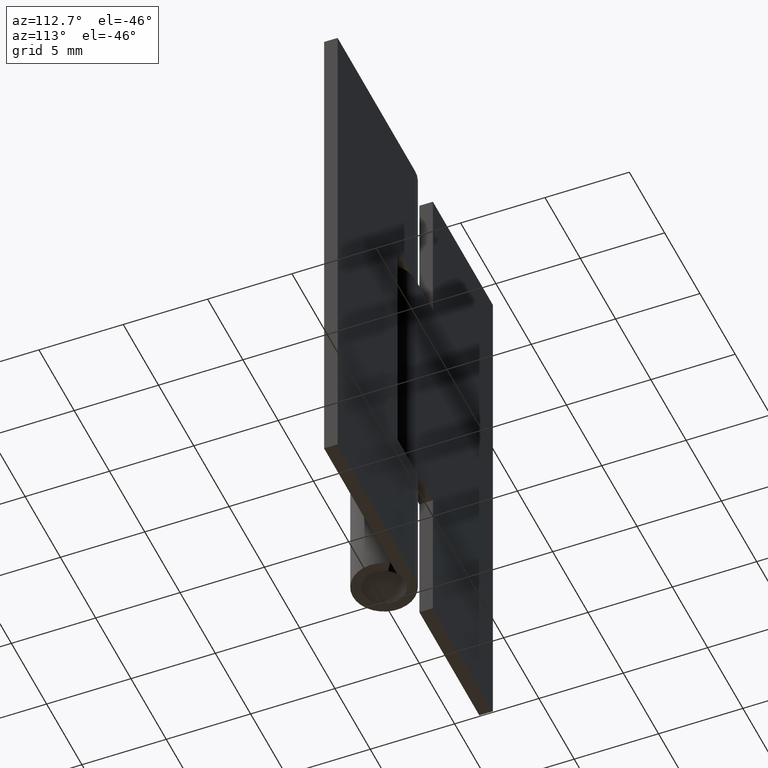
[diagram: clean part render]
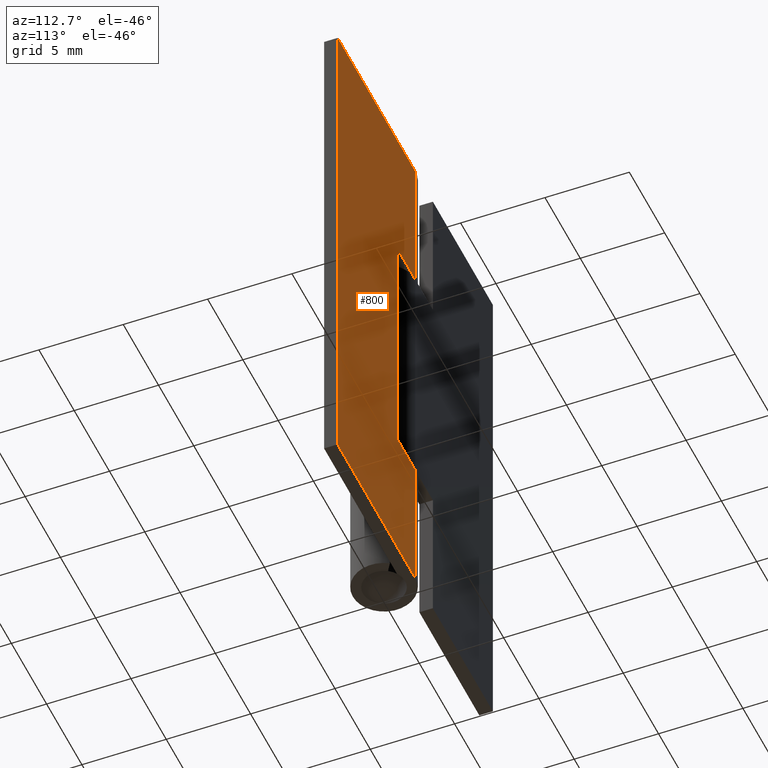
[diagram: same view with one face highlighted and labeled with its STEP entity id]
A machine part, auxiliary view. The second image highlights one B-rep face of the part: STEP entity #800.
In plain terms, the highlighted face is a freeform B-spline surface patch.
Its self-contained STEP definition (entity closure, byte-faithful):
#558=CARTESIAN_POINT('',(0.002720293357385,1.849997999999965,23.500000000000000));
#559=VERTEX_POINT('',#558);
#601=CARTESIAN_POINT('',(0.002720293357385,1.849998000000000,32.0));
#602=VERTEX_POINT('',#601);
#637=CARTESIAN_POINT('',(0.002720293357385,1.849998000000000,32.0));
#638=CARTESIAN_POINT('',(0.002720293357385,1.849997999999965,23.500000000000000));
#639=QUASI_UNIFORM_CURVE('',1,(#637,#638),.UNSPECIFIED.,.F.,.U.);
#640=EDGE_CURVE('',#602,#559,#639,.T.);
#702=CARTESIAN_POINT('',(0.002720293357385,1.849997999999965,8.499999999999870));
#703=VERTEX_POINT('',#702);
#709=CARTESIAN_POINT('',(0.002720293357385,1.849998000000000,0.0));
#710=VERTEX_POINT('',#709);
#711=CARTESIAN_POINT('',(0.002720293357385,1.849997999999965,8.499999999999870));
#712=CARTESIAN_POINT('',(0.002720293357385,1.849998000000000,0.0));
#713=QUASI_UNIFORM_CURVE('',1,(#711,#712),.UNSPECIFIED.,.F.,.U.);
#714=EDGE_CURVE('',#703,#710,#713,.T.);
#753=CARTESIAN_POINT('',(-0.546593806674552,1.849998000000000,33.598399937977788));
#754=CARTESIAN_POINT('',(-0.546593806674552,1.849998000000000,-1.598400796284675));
#755=CARTESIAN_POINT('',(11.549314395001961,1.849998000000000,33.598399937977788));
#756=CARTESIAN_POINT('',(11.549314395001961,1.849998000000000,-1.598400796284675));
#757=B_SPLINE_SURFACE_WITH_KNOTS('',1,1,((#753,#755),(#754,#756)),.UNSPECIFIED.,.F.,.F.,.U.,(2,2),(2,2),(0.0,35.196800734262460),(0.0,12.095908201676520),.UNSPECIFIED.);
#758=CARTESIAN_POINT('',(2.500000000000000,1.849997999999965,8.499999999999870));
#759=VERTEX_POINT('',#758);
#760=CARTESIAN_POINT('',(0.002720293357385,1.849997999999965,8.499999999999870));
#761=CARTESIAN_POINT('',(2.500000000000000,1.849997999999965,8.499999999999870));
#762=QUASI_UNIFORM_CURVE('',1,(#760,#761),.UNSPECIFIED.,.F.,.U.);
#763=EDGE_CURVE('',#703,#759,#762,.T.);
#764=ORIENTED_EDGE('',*,*,#763,.T.);
#765=CARTESIAN_POINT('',(2.500000000000000,1.849997999999965,23.500000000000000));
#766=VERTEX_POINT('',#765);
#767=CARTESIAN_POINT('',(2.500000000000000,1.849997999999965,8.499999999999870));
#768=CARTESIAN_POINT('',(2.500000000000000,1.849997999999965,23.500000000000000));
#769=QUASI_UNIFORM_CURVE('',1,(#767,#768),.UNSPECIFIED.,.F.,.U.);
#770=EDGE_CURVE('',#759,#766,#769,.T.);
#771=ORIENTED_EDGE('',*,*,#770,.T.);
#772=CARTESIAN_POINT('',(2.500000000000000,1.849997999999965,23.500000000000000));
#773=CARTESIAN_POINT('',(0.002720293357385,1.849997999999965,23.500000000000000));
#774=QUASI_UNIFORM_CURVE('',1,(#772,#773),.UNSPECIFIED.,.F.,.U.);
#775=EDGE_CURVE('',#766,#559,#774,.T.);
#776=ORIENTED_EDGE('',*,*,#775,.T.);
#777=ORIENTED_EDGE('',*,*,#640,.F.);
#778=CARTESIAN_POINT('',(11.0,1.849998000000000,32.0));
#779=VERTEX_POINT('',#778);
#780=CARTESIAN_POINT('',(11.0,1.849998000000000,32.0));
#781=CARTESIAN_POINT('',(0.002720293357385,1.849998000000000,32.0));
#782=QUASI_UNIFORM_CURVE('',1,(#780,#781),.UNSPECIFIED.,.F.,.U.);
#783=EDGE_CURVE('',#779,#602,#782,.T.);
#784=ORIENTED_EDGE('',*,*,#783,.F.);
#785=CARTESIAN_POINT('',(11.0,1.849998000000000,0.0));
#786=VERTEX_POINT('',#785);
#787=CARTESIAN_POINT('',(11.0,1.849998000000000,32.0));
#788=CARTESIAN_POINT('',(11.0,1.849998000000000,0.0));
#789=QUASI_UNIFORM_CURVE('',1,(#787,#788),.UNSPECIFIED.,.F.,.U.);
#790=EDGE_CURVE('',#779,#786,#789,.T.);
#791=ORIENTED_EDGE('',*,*,#790,.T.);
#792=CARTESIAN_POINT('',(11.0,1.849998000000000,0.0));
#793=CARTESIAN_POINT('',(0.002720293357385,1.849998000000000,0.0));
#794=QUASI_UNIFORM_CURVE('',1,(#792,#793),.UNSPECIFIED.,.F.,.U.);
#795=EDGE_CURVE('',#786,#710,#794,.T.);
#796=ORIENTED_EDGE('',*,*,#795,.T.);
#797=ORIENTED_EDGE('',*,*,#714,.F.);
#798=EDGE_LOOP('',(#764,#771,#776,#777,#784,#791,#796,#797));
#799=FACE_OUTER_BOUND('',#798,.T.);
#800=ADVANCED_FACE('',(#799),#757,.F.);